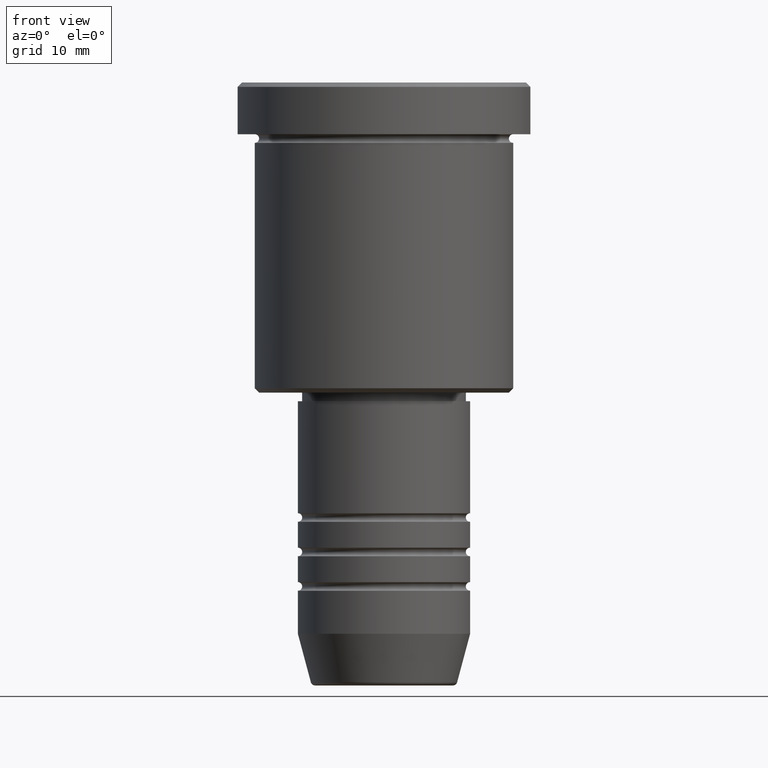
[diagram: clean part render]
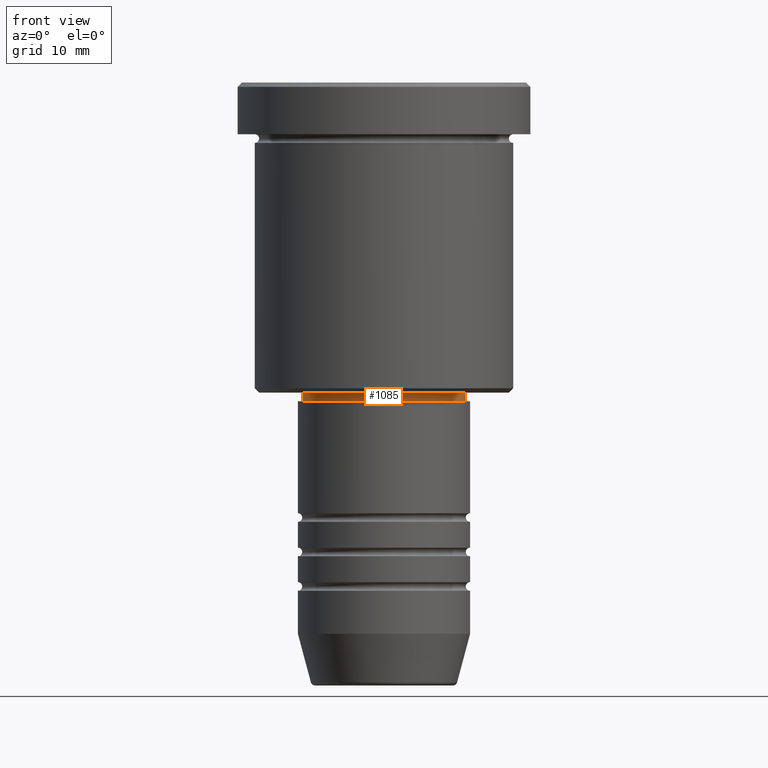
[diagram: same view with one face highlighted and labeled with its STEP entity id]
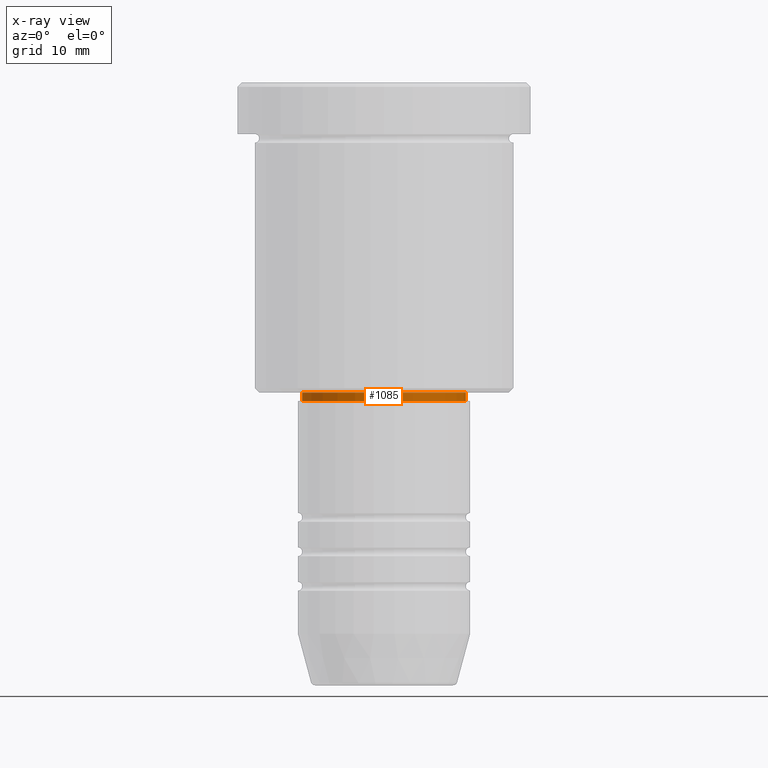
[diagram: x-ray of the same camera — body ghosted, the highlighted face saturated]
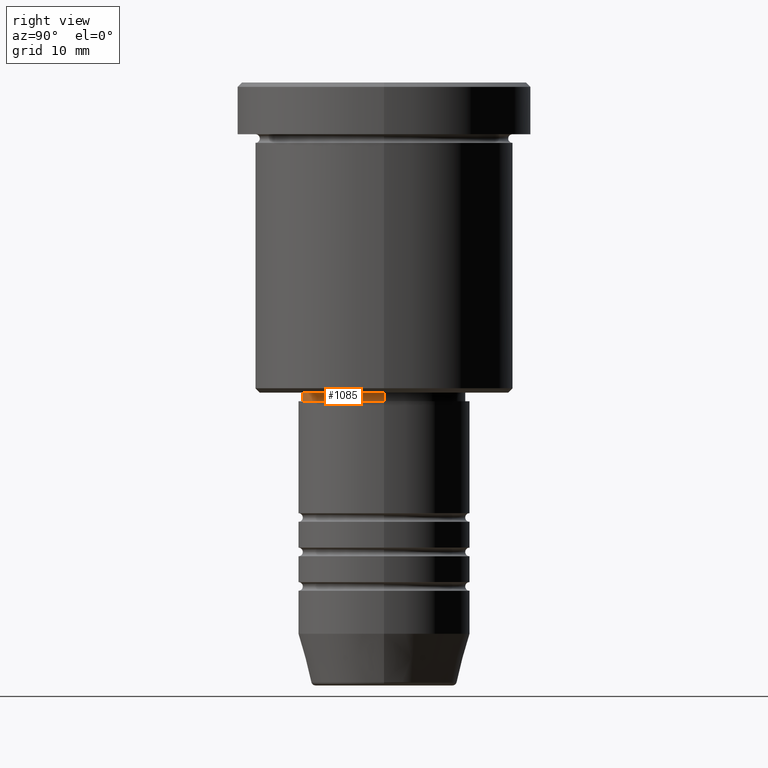
[diagram: same view with one face highlighted and labeled with its STEP entity id]
A machine part, front view. The second image highlights one B-rep face of the part: STEP entity #1085.
The next image is the same camera in x-ray: the body ghosted, the highlighted face saturated — about 0% of this face is hidden behind the body in this view.
A second angle (right view) of the same face is appended — the face is thin or edge-on in the first view.
In plain terms, the highlighted cylindrical surface (partial cylindrical patch) has radius 9.5 mm, axis along (-0, -0, 1).
Its self-contained STEP definition (entity closure, byte-faithful):
#15 = AXIS2_PLACEMENT_3D ( 'NONE', #865, #473, #1019 ) ;
#91 = VECTOR ( 'NONE', #1147, 1000.000000000000000 ) ;
#115 = DIRECTION ( 'NONE',  ( 1.000000000000000000, 0.000000000000000000, 0.000000000000000000 ) ) ;
#193 = LINE ( 'NONE', #756, #1070 ) ;
#266 = EDGE_CURVE ( 'NONE', #884, #567, #193, .T. ) ;
#276 = DIRECTION ( 'NONE',  ( 1.000000000000000000, 0.000000000000000000, 0.000000000000000000 ) ) ;
#288 = FACE_OUTER_BOUND ( 'NONE', #425, .T. ) ;
#292 = VERTEX_POINT ( 'NONE', #1004 ) ;
#318 = DIRECTION ( 'NONE',  ( -0.000000000000000000, -0.000000000000000000, 1.000000000000000000 ) ) ;
#319 = ORIENTED_EDGE ( 'NONE', *, *, #266, .F. ) ;
#339 = CARTESIAN_POINT ( 'NONE',  ( 9.500000000000001776, 0.000000000000000000, 0.000000000000000000 ) ) ;
#351 = ORIENTED_EDGE ( 'NONE', *, *, #701, .T. ) ;
#371 = CARTESIAN_POINT ( 'NONE',  ( -9.500000000000000000, 1.163414459189985485E-15, -37.00000000000000711 ) ) ;
#381 = DIRECTION ( 'NONE',  ( -0.000000000000000000, -0.000000000000000000, 1.000000000000000000 ) ) ;
#408 = CARTESIAN_POINT ( 'NONE',  ( 0.000000000000000000, 0.000000000000000000, -37.00000000000000711 ) ) ;
#425 = EDGE_LOOP ( 'NONE', ( #319, #681, #351, #951 ) ) ;
#473 = DIRECTION ( 'NONE',  ( -0.000000000000000000, -0.000000000000000000, 1.000000000000000000 ) ) ;
#495 = CYLINDRICAL_SURFACE ( 'NONE', #15, 9.500000000000001776 ) ;
#546 = EDGE_CURVE ( 'NONE', #884, #965, #998, .T. ) ;
#567 = VERTEX_POINT ( 'NONE', #955 ) ;
#573 = AXIS2_PLACEMENT_3D ( 'NONE', #820, #831, #276 ) ;
#681 = ORIENTED_EDGE ( 'NONE', *, *, #546, .T. ) ;
#691 = CIRCLE ( 'NONE', #573, 9.500000000000001776 ) ;
#701 = EDGE_CURVE ( 'NONE', #965, #292, #817, .T. ) ;
#756 = CARTESIAN_POINT ( 'NONE',  ( -9.500000000000001776, 1.163414459189985682E-15, 0.000000000000000000 ) ) ;
#782 = CARTESIAN_POINT ( 'NONE',  ( 9.500000000000000000, 0.000000000000000000, -37.00000000000000711 ) ) ;
#817 = LINE ( 'NONE', #339, #91 ) ;
#820 = CARTESIAN_POINT ( 'NONE',  ( 0.000000000000000000, 0.000000000000000000, -36.00000000000000000 ) ) ;
#831 = DIRECTION ( 'NONE',  ( -0.000000000000000000, -0.000000000000000000, 1.000000000000000000 ) ) ;
#865 = CARTESIAN_POINT ( 'NONE',  ( 0.000000000000000000, 0.000000000000000000, 0.000000000000000000 ) ) ;
#884 = VERTEX_POINT ( 'NONE', #371 ) ;
#922 = AXIS2_PLACEMENT_3D ( 'NONE', #408, #318, #115 ) ;
#951 = ORIENTED_EDGE ( 'NONE', *, *, #1177, .F. ) ;
#955 = CARTESIAN_POINT ( 'NONE',  ( -9.500000000000001776, 1.163414459189985682E-15, -36.00000000000000000 ) ) ;
#965 = VERTEX_POINT ( 'NONE', #782 ) ;
#998 = CIRCLE ( 'NONE', #922, 9.500000000000000000 ) ;
#1004 = CARTESIAN_POINT ( 'NONE',  ( 9.500000000000001776, 0.000000000000000000, -36.00000000000000000 ) ) ;
#1019 = DIRECTION ( 'NONE',  ( 1.000000000000000000, 0.000000000000000000, 0.000000000000000000 ) ) ;
#1070 = VECTOR ( 'NONE', #381, 1000.000000000000000 ) ;
#1085 = ADVANCED_FACE ( 'NONE', ( #288 ), #495, .T. ) ;
#1147 = DIRECTION ( 'NONE',  ( -0.000000000000000000, -0.000000000000000000, 1.000000000000000000 ) ) ;
#1177 = EDGE_CURVE ( 'NONE', #567, #292, #691, .T. ) ;